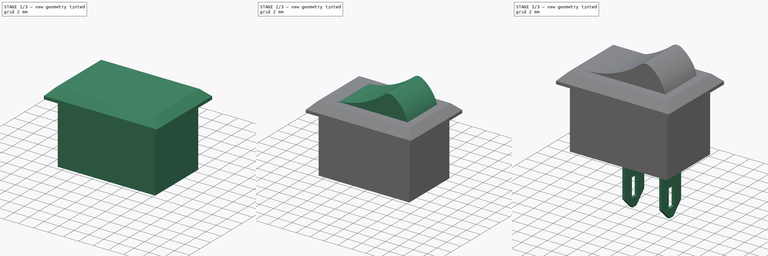
[diagram: build sequence overview — one tinted view per stage of 3, left to right]
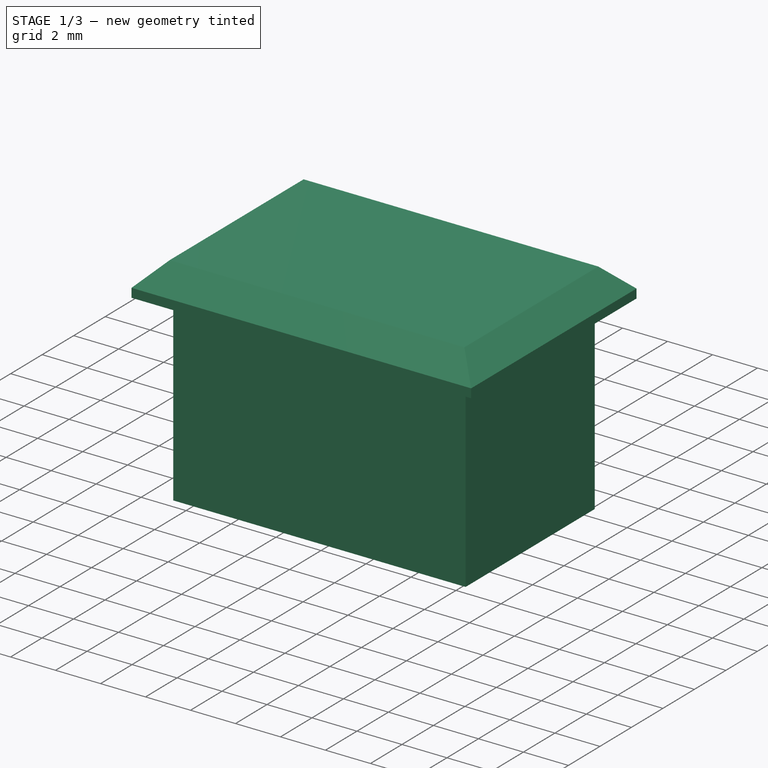
[diagram: stage 1 of 3 — iso view after this stage's code; geometry added in this stage tinted green]
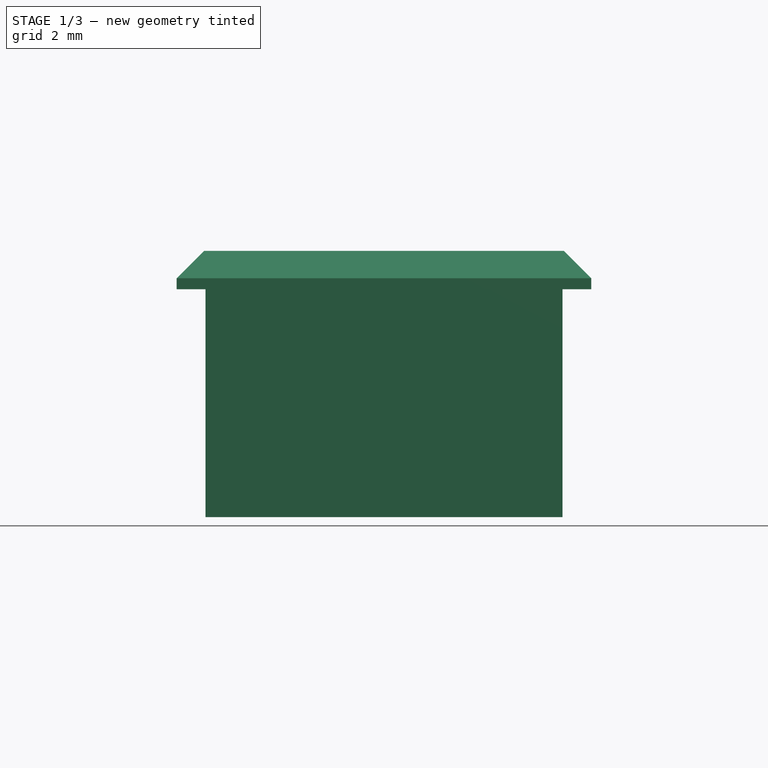
[diagram: stage 1 of 3 — front view after this stage's code; geometry added in this stage tinted green]
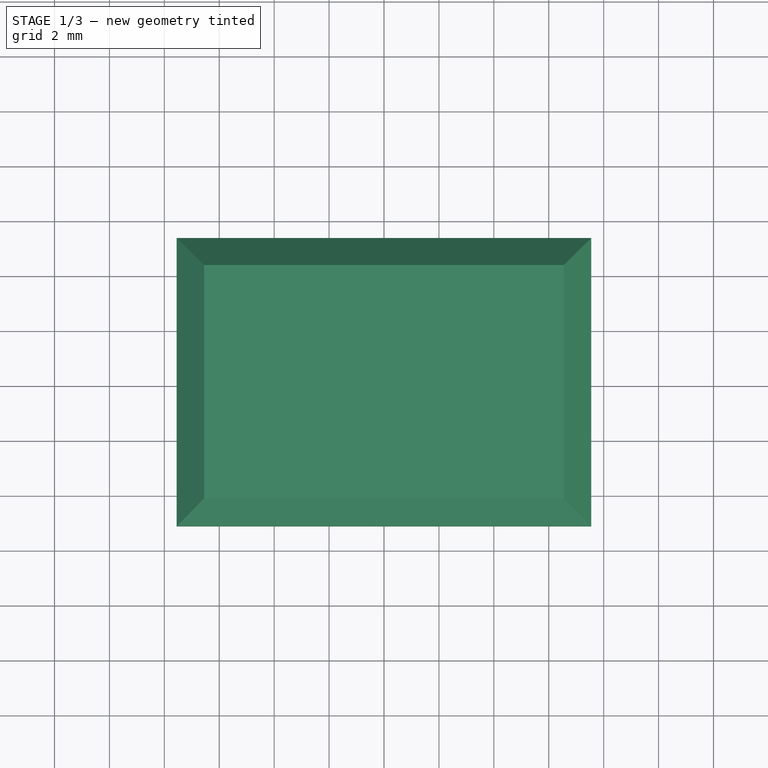
[diagram: stage 1 of 3 — top view after this stage's code; geometry added in this stage tinted green]
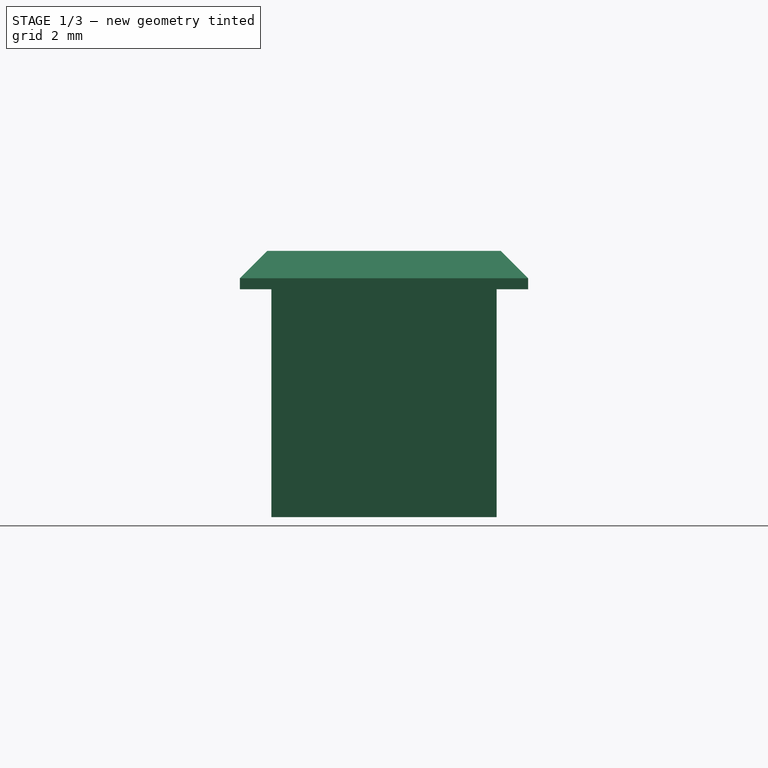
[diagram: stage 1 of 3 — right view after this stage's code; geometry added in this stage tinted green]
FCSTD DOCUMENT  (FreeCAD 0.19R24267 +148 (Git))
Label: switch15x10_003_0
License: All rights reserved
LicenseURL: http://en.wikipedia.org/wiki/All_rights_reserved
objects: Sketcher::SketchObject×5, PartDesign::Pad×4, PartDesign::Chamfer×2, Spreadsheet::Sheet×1, PartDesign::Fillet×1, PartDesign::Plane×1, PartDesign::Pocket×1, PartDesign::Body×1, App::Part×1
note: 23 computed .brp shape members not serialized (recipe doc carries the construction recipe); baked Part::Feature solids carry a one-line shape summary decoded from their .brp

FEATURE [Spreadsheet::Sheet] Spreadsheet  label="sw15x10Sp"
  cells = A1=KCD1-11 AMAZON ; A2=larg; B2(larg)=8.199999999999999; A3=long; B3(long)=13; A4=haut; B4(haut)=8.300000000000001; A5=jeu; B5(jeu)=0.6; A6=cosseLarg; B6(cosseLarg)=3.7; A7=cosseHaut; B7(cosseHaut)=6.65; A8=cosseEp; B8(cosseEp)=0.33; A9=cosseTrouLong; B9(cosseTrouLong)=2.5; A10=cosseTrouLar; B10(cosseTrouLar)=1; A11=cosseTrouDistSom; B11(cosseTrouDistSom)=1.19; A12=cosseEntraxe; B12(cosseEntraxe)=4.6; A13=cosseDistBord; B13(cosseDistBord)=2.3; A14=trouLong; B14(trouLong)=14.5; C14=A tester; A15=trouLarg; B15(trouLarg)==larg + jeu; A16=levreEp; B16(levreEp)=1.4; A17=LevreLarg; B17(LevreLarg)=10.5; A18=levreLong; B18(levreLong)=15.1
FEATURE [Sketcher::SketchObject] Sketch
  FullyConstrained = true
  MapMode = 5
  Support = -> [XY_Plane001]
  expr: Constraints[10] = <<sw15x10Sp>>.larg
  expr: Constraints[9] = <<sw15x10Sp>>.long
  sketch-geometry (4):
    g0: LineSegment StartX=-6.5 StartY=4.1 StartZ=0 EndX=6.5 EndY=4.1 EndZ=0
    g1: LineSegment StartX=6.5 StartY=4.1 StartZ=0 EndX=6.5 EndY=-4.1 EndZ=0
    g2: LineSegment StartX=6.5 StartY=-4.1 StartZ=0 EndX=-6.5 EndY=-4.1 EndZ=0
    g3: LineSegment StartX=-6.5 StartY=-4.1 StartZ=0 EndX=-6.5 EndY=4.1 EndZ=0
  constraints (11):
    c: Coincident(g0,g1)
    c: Coincident(g1,g2)
    c: Coincident(g2,g3)
    c: Coincident(g3,g0)
    c: Horizontal(g0)
    c: Horizontal(g2)
    c: Vertical(g1)
    c: Vertical(g3)
    c: Symmetric(g0,g1,g-1)
    c: DistanceX(g0,g0) = 13
    c: DistanceY(g1,g1) = 8.2
FEATURE [PartDesign::Pad] Pad  label="corp"
  Direction = (1,1,1)
  Length = 8.3
  Length2 = 100
  Profile = -> Sketch
  Reversed = true
  Type = 0
  expr: Length = <<sw15x10Sp>>.haut
FEATURE [Sketcher::SketchObject] Sketch001
  FullyConstrained = true
  MapMode = 5
  Support = -> [XY_Plane001]
  expr: Constraints[10] = <<sw15x10Sp>>.LevreLarg
  expr: Constraints[9] = <<sw15x10Sp>>.levreLong
  sketch-geometry (4):
    g0: LineSegment StartX=-7.55 StartY=5.25 StartZ=0 EndX=7.55 EndY=5.25 EndZ=0
    g1: LineSegment StartX=7.55 StartY=5.25 StartZ=0 EndX=7.55 EndY=-5.25 EndZ=0
    g2: LineSegment StartX=7.55 StartY=-5.25 StartZ=0 EndX=-7.55 EndY=-5.25 EndZ=0
    g3: LineSegment StartX=-7.55 StartY=-5.25 StartZ=0 EndX=-7.55 EndY=5.25 EndZ=0
  constraints (11):
    c: Coincident(g0,g1)
    c: Coincident(g1,g2)
    c: Coincident(g2,g3)
    c: Coincident(g3,g0)
    c: Horizontal(g0)
    c: Horizontal(g2)
    c: Vertical(g1)
    c: Vertical(g3)
    c: Symmetric(g0,g1,g-1)
    c: DistanceX(g0,g0) = 15.1
    c: DistanceY(g1,g1) = 10.5
FEATURE [PartDesign::Pad] Pad001
  BaseFeature = -> Pad
  Direction = (1,1,1)
  Length = 1.4
  Length2 = 100
  Profile = -> Sketch001
  Type = 0
  expr: Length = <<sw15x10Sp>>.levreEp
FEATURE [PartDesign::Chamfer] Chamfer
  Angle = 45
  Base = -> Pad001 [Edge7,Edge4,Edge10,Edge16]
  BaseFeature = -> Pad001
  ChamferType = 0
  FlipDirection = false
  Size = 1
  Size2 = 1
  SupportTransform = false
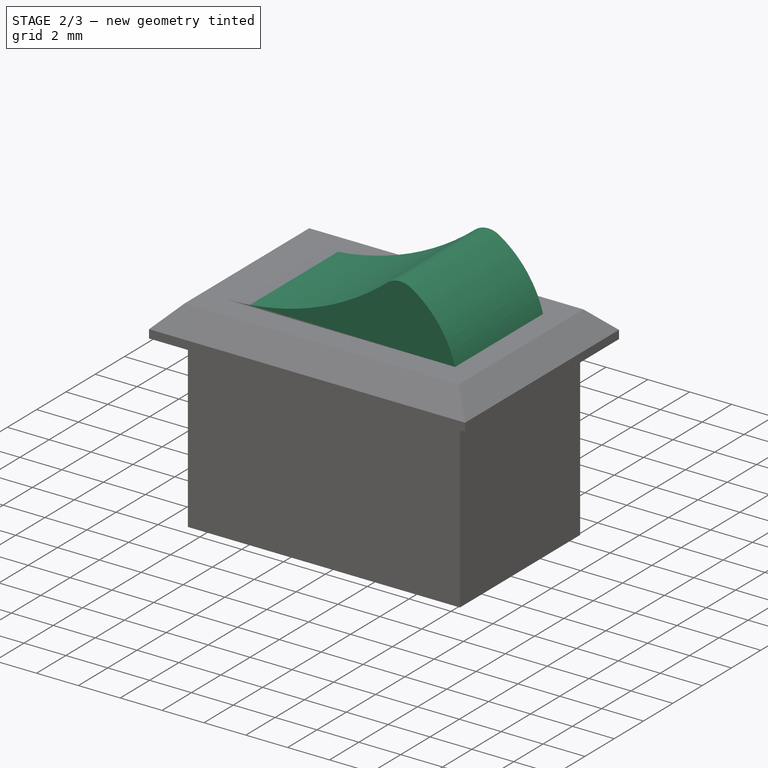
[diagram: stage 2 of 3 — iso view after this stage's code; geometry added in this stage tinted green]
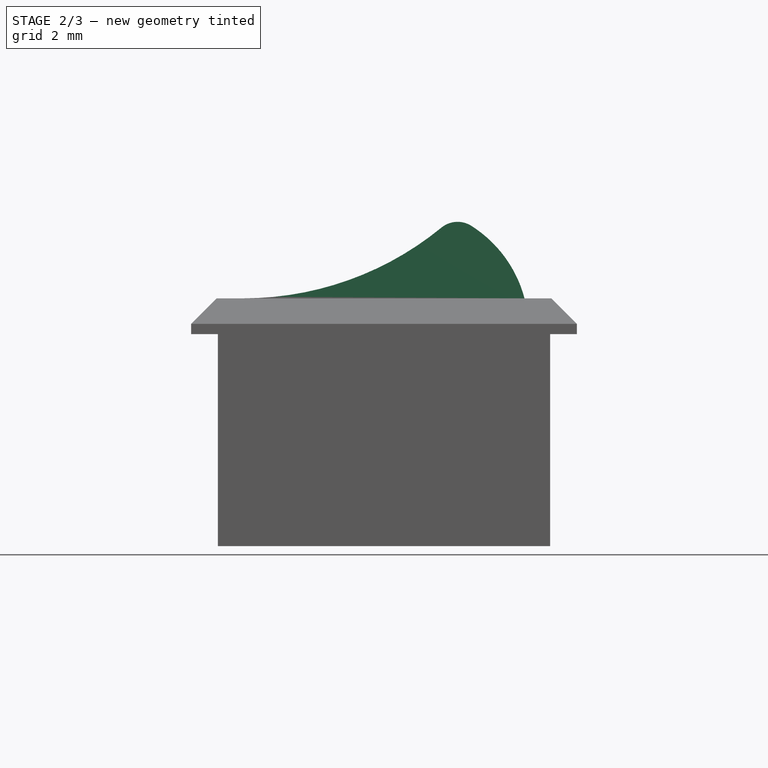
[diagram: stage 2 of 3 — front view after this stage's code; geometry added in this stage tinted green]
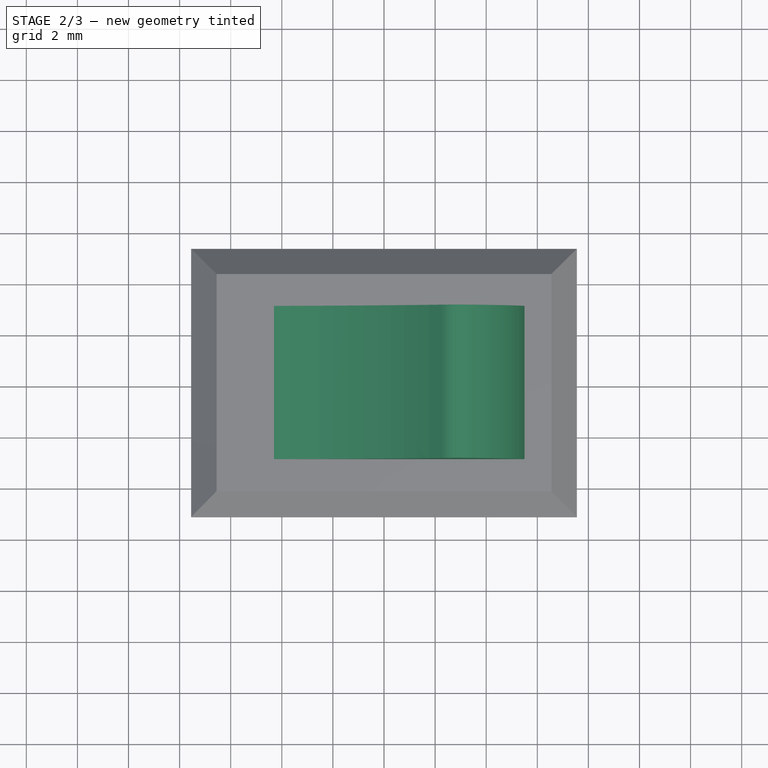
[diagram: stage 2 of 3 — top view after this stage's code; geometry added in this stage tinted green]
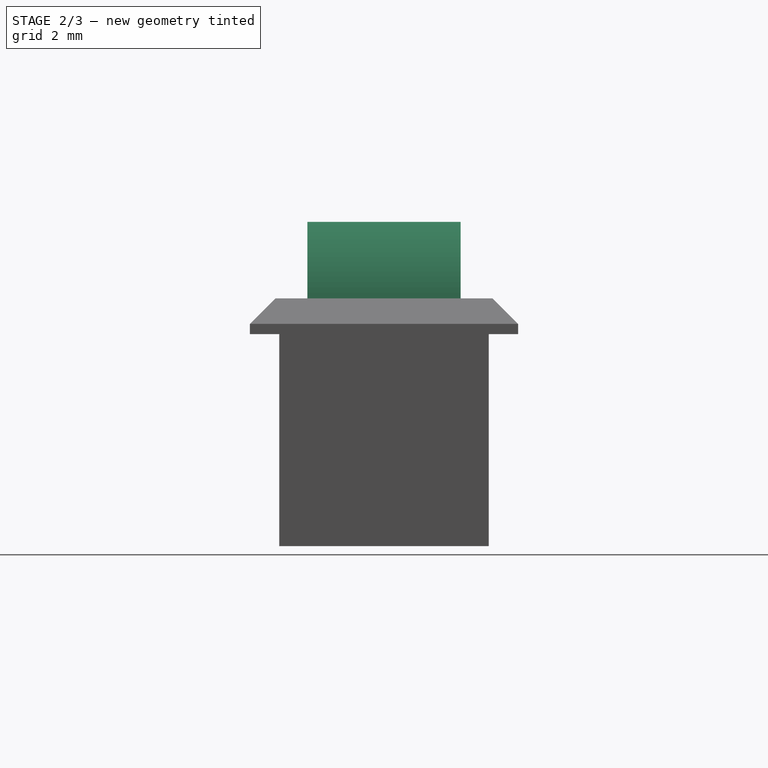
[diagram: stage 2 of 3 — right view after this stage's code; geometry added in this stage tinted green]
FEATURE [Sketcher::SketchObject] Sketch002
  FullyConstrained = true
  MapMode = 5
  Placement = pos=(0,0,0) rot=(1,0,0;1.5708rad)
  Support = -> [XZ_Plane001]
  expr: Constraints[2] = <<sw15x10Sp>>.long - 2
  expr: Constraints[1] = <<sw15x10Sp>>.levreEp
  sketch-geometry (3):
    g0: LineSegment StartX=-5.5 StartY=1.4 StartZ=0 EndX=5.5 EndY=1.4 EndZ=0
    g1: ArcOfCircle CenterX=0.849908 CenterY=0.170661 CenterZ=0 NormalX=0 NormalY=0 NormalZ=1 AngleXU=0 Radius=4.80985 StartAngle=0.258456 EndAngle=1.1671
    g2: ArcOfCircle CenterX=-5.5 CenterY=13.6245 CenterZ=0 NormalX=0 NormalY=0 NormalZ=1 AngleXU=0 Radius=12.2245 StartAngle=4.71239 EndAngle=5.452
  constraints (9):
    c: Symmetric(g0,g0,g-2)
    c: DistanceY(g-1,g0) = 1.4
    c: DistanceX(g0,g0) = 11
    c: Coincident(g1,g0)
    c: Tangent(g2,g0) = -1.5708
    c: Coincident(g1,g2)
    c: DistanceY(g2) = 13.6245
    c: DistanceX(g1) = 0.849908
    c: DistanceY(g1) = 0.170661
FEATURE [PartDesign::Pad] Pad002
  BaseFeature = -> Chamfer
  Direction = (1,1,1)
  Length = 6
  Length2 = 100
  Midplane = true
  Profile = -> Sketch002
  Type = 0
FEATURE [PartDesign::Fillet] Fillet
  Base = -> Pad002 [Edge39]
  BaseFeature = -> Pad002
  Radius = 1
  SupportTransform = false
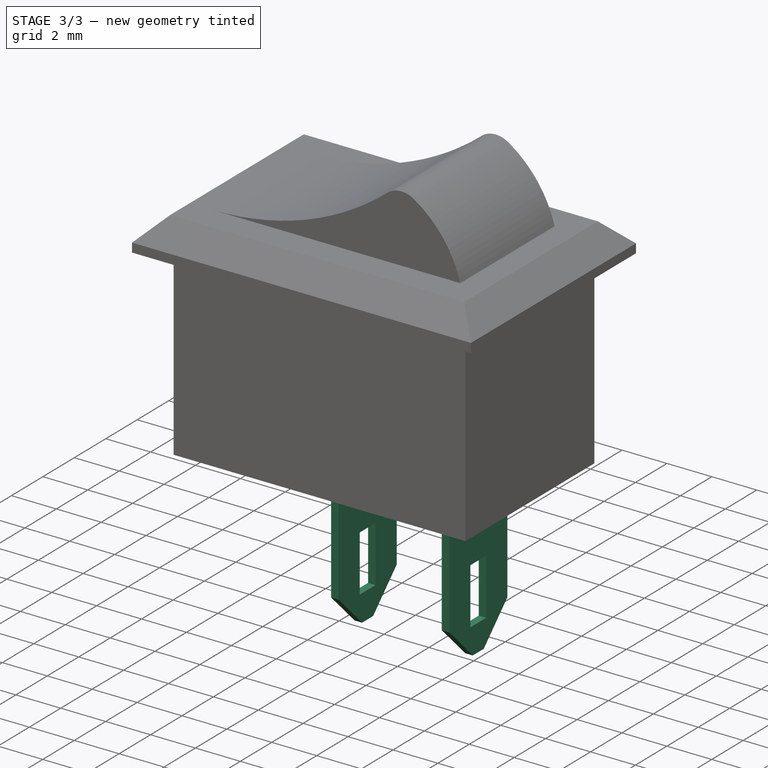
[diagram: stage 3 of 3 — iso view after this stage's code; geometry added in this stage tinted green]
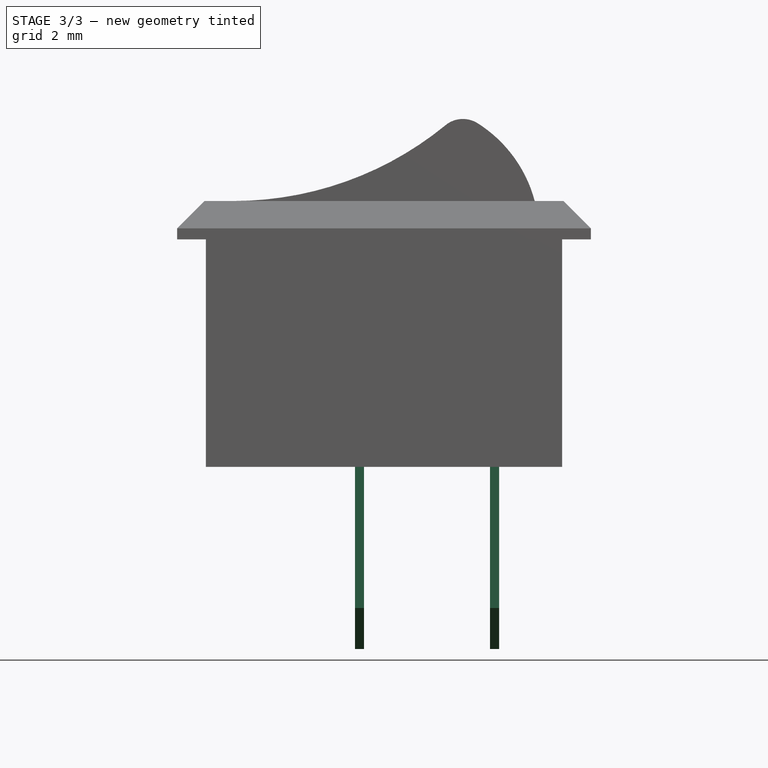
[diagram: stage 3 of 3 — front view after this stage's code; geometry added in this stage tinted green]
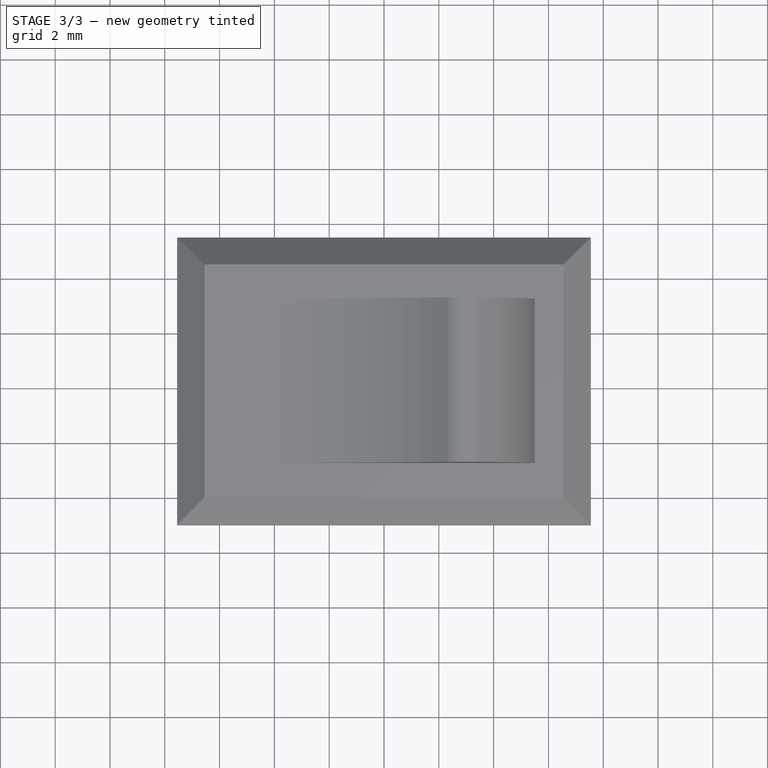
[diagram: stage 3 of 3 — top view after this stage's code; geometry added in this stage tinted green]
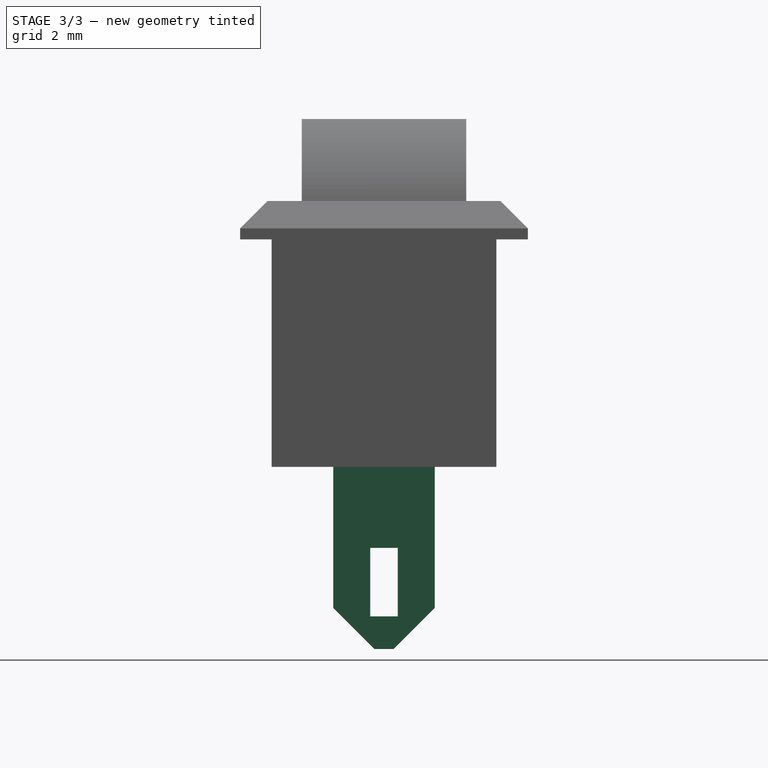
[diagram: stage 3 of 3 — right view after this stage's code; geometry added in this stage tinted green]
FEATURE [PartDesign::Plane] DatumPlane  label="planCosses"
  AttachmentOffset = pos=(0,0,-8.3) rot=(0,0,1;0rad)
  Length = 60
  MapMode = 5
  Placement = pos=(0,0,-8.3) rot=(0,0,1;0rad)
  ResizeMode = 0
  Support = -> [XY_Plane001]
  Width = 60
  expr: .AttachmentOffset.Base.z = -<<sw15x10Sp>>.haut
FEATURE [Sketcher::SketchObject] Sketch003
  FullyConstrained = true
  MapMode = 5
  Placement = pos=(0,0,-8.3) rot=(0,0,1;0rad)
  Support = -> [DatumPlane]
  expr: Constraints[24] = <<sw15x10Sp>>.long / 2 - <<sw15x10Sp>>.cosseDistBord - <<sw15x10Sp>>.cosseEp
  expr: Constraints[22] = <<sw15x10Sp>>.cosseLarg
  expr: Constraints[21] = <<sw15x10Sp>>.cosseEntraxe
  expr: Constraints[20] = <<sw15x10Sp>>.cosseEp
  sketch-geometry (9):
    g0: LineSegment StartX=3.87 StartY=1.85 StartZ=0 EndX=4.2 EndY=1.85 EndZ=0
    g1: LineSegment StartX=4.2 StartY=1.85 StartZ=0 EndX=4.2 EndY=-1.85 EndZ=0
    g2: LineSegment StartX=4.2 StartY=-1.85 StartZ=0 EndX=3.87 EndY=-1.85 EndZ=0
    g3: LineSegment StartX=3.87 StartY=-1.85 StartZ=0 EndX=3.87 EndY=1.85 EndZ=0
    g4: LineSegment StartX=-1.06 StartY=1.85 StartZ=0 EndX=-0.73 EndY=1.85 EndZ=0
    g5: LineSegment StartX=-0.73 StartY=1.85 StartZ=0 EndX=-0.73 EndY=-1.85 EndZ=0
    g6: LineSegment StartX=-0.73 StartY=-1.85 StartZ=0 EndX=-1.06 EndY=-1.85 EndZ=0
    g7: LineSegment StartX=-1.06 StartY=-1.85 StartZ=0 EndX=-1.06 EndY=1.85 EndZ=0
    g8: LineSegment StartX=-0.73 StartY=1.85 StartZ=0 EndX=3.87 EndY=1.85 EndZ=0
  constraints (25):
    c: Coincident(g0,g1)
    c: Coincident(g1,g2)
    c: Coincident(g2,g3)
    c: Coincident(g3,g0)
    c: Horizontal(g0)
    c: Horizontal(g2)
    c: Vertical(g3)
    c: Coincident(g4,g5)
    c: Coincident(g5,g6)
    c: Coincident(g6,g7)
    c: Coincident(g7,g4)
    c: Horizontal(g4)
    c: Horizontal(g6)
    c: Vertical(g5)
    c: Vertical(g7)
    c: Equal(g5,g3)
    c: Equal(g4,g0)
    c: Coincident(g8,g4)
    c: Coincident(g8,g0)
    c: Horizontal(g8)
    c: DistanceX(g0,g0) = 0.33
    c: DistanceX(g8,g8) = 4.6
    c: DistanceY(g1,g1) = 3.7
    c: Symmetric(g1,g0,g-1)
    c: DistanceX(g-1,g2) = 3.87
FEATURE [PartDesign::Pad] Pad003  label="cossesBase"
  BaseFeature = -> Fillet
  Direction = (1,1,1)
  Length = 6.65
  Length2 = 100
  Profile = -> Sketch003
  Reversed = true
  Type = 0
  expr: Length = <<sw15x10Sp>>.cosseHaut
FEATURE [PartDesign::Chamfer] Chamfer001  label="chanfreinCosse"
  Angle = 45
  Base = -> Pad003 [Edge59,Edge55,Edge63,Edge67]
  BaseFeature = -> Pad003
  ChamferType = 0
  FlipDirection = false
  Size = 1.5
  Size2 = 1
  SupportTransform = false
FEATURE [Sketcher::SketchObject] Sketch004
  FullyConstrained = true
  MapMode = 5
  Placement = pos=(4.2,0,0) rot=(0.57735,0.57735,0.57735;2.0944rad)
  Support = -> [Chamfer001]
  expr: Constraints[10] = <<sw15x10Sp>>.haut + <<sw15x10Sp>>.cosseHaut - <<sw15x10Sp>>.cosseTrouLong - <<sw15x10Sp>>.cosseTrouDistSom
  expr: Constraints[9] = <<sw15x10Sp>>.cosseTrouLong
  expr: Constraints[8] = <<sw15x10Sp>>.cosseTrouLar
  sketch-geometry (4):
    g0: LineSegment StartX=-0.5 StartY=-11.26 StartZ=0 EndX=0.5 EndY=-11.26 EndZ=0
    g1: LineSegment StartX=0.5 StartY=-11.26 StartZ=0 EndX=0.5 EndY=-13.76 EndZ=0
    g2: LineSegment StartX=0.5 StartY=-13.76 StartZ=0 EndX=-0.5 EndY=-13.76 EndZ=0
    g3: LineSegment StartX=-0.5 StartY=-13.76 StartZ=0 EndX=-0.5 EndY=-11.26 EndZ=0
  constraints (11):
    c: Coincident(g0,g1)
    c: Coincident(g1,g2)
    c: Coincident(g2,g3)
    c: Coincident(g3,g0)
    c: Horizontal(g0)
    c: Vertical(g1)
    c: Vertical(g3)
    c: Symmetric(g2,g1,g-2)
    c: DistanceX(g2,g2) = 1
    c: DistanceY(g1,g1) = 2.5
    c: DistanceY(g0,g-1) = 11.26
FEATURE [PartDesign::Pocket] Pocket
  BaseFeature = -> Chamfer001
  Length = 5
  Length2 = 100
  Profile = -> Sketch004
  Type = 1
FEATURE [PartDesign::Body] Body  label="sw15x10Bdy"
  Group = -> [Sketch,Pad,Sketch001,Pad001,Chamfer,Sketch002,Pad002,Fillet,DatumPlane,Sketch003,Pad003,Chamfer001,Sketch004,Pocket]
  Origin = -> Origin001
  Tip = -> Pocket
FEATURE [App::Part] Part  label="sw15x10Prt"
  Group = -> [Body,Spreadsheet]
  Origin = -> Origin
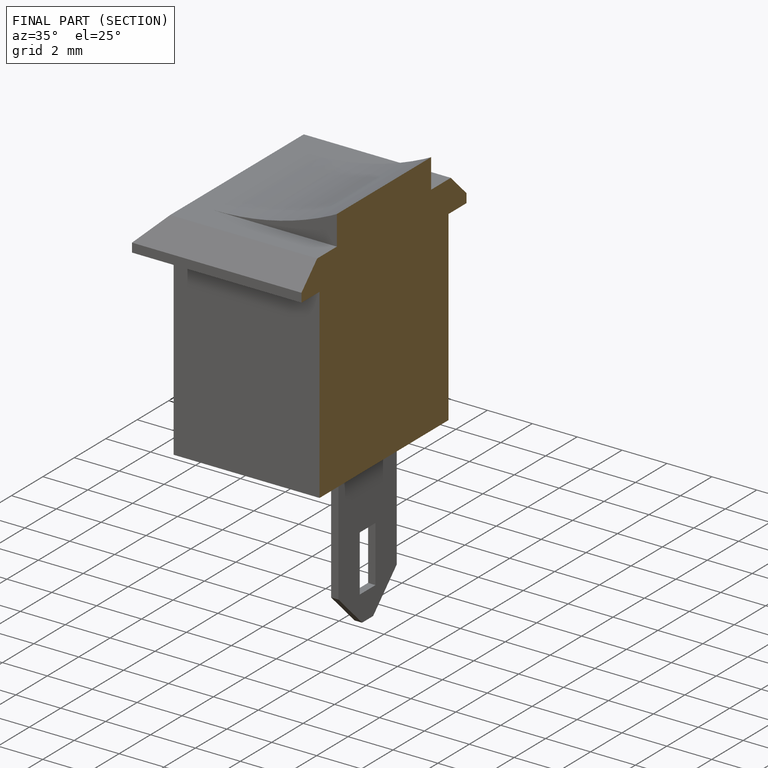
[diagram: finished part — half-section view (interior)]
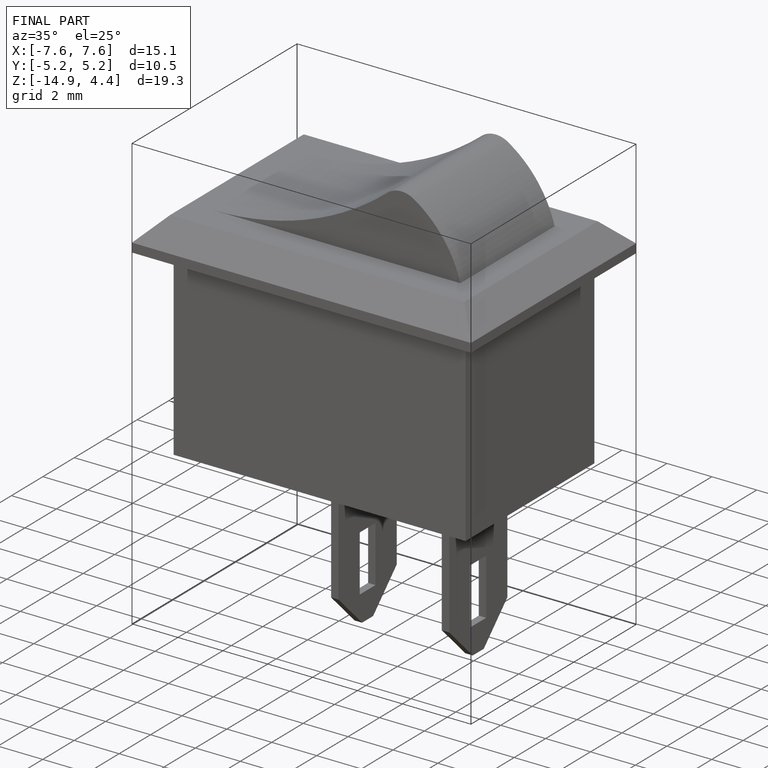
[diagram: finished part — iso view with bounding-box wireframe]
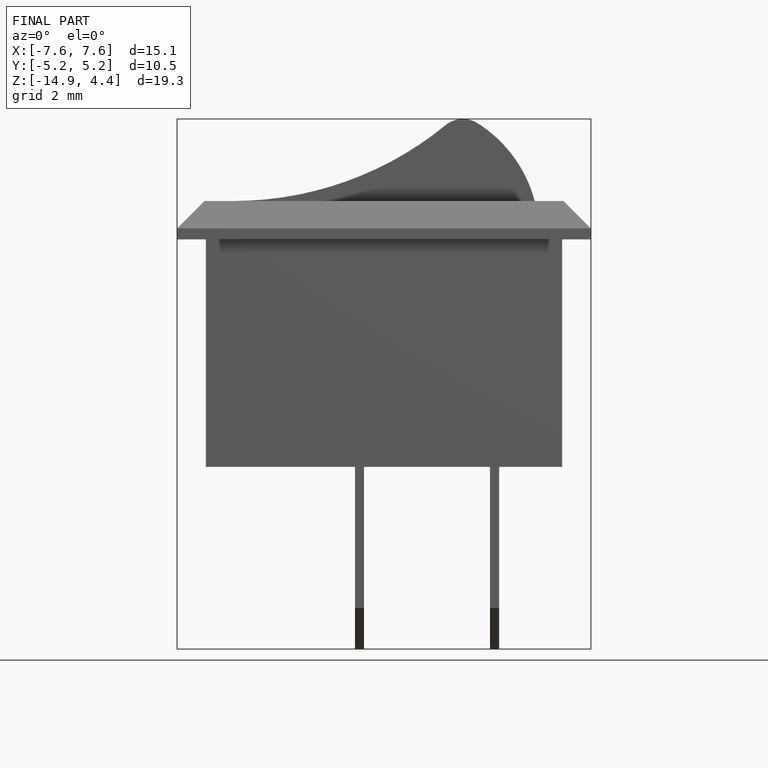
[diagram: finished part — front view with bounding-box wireframe]
